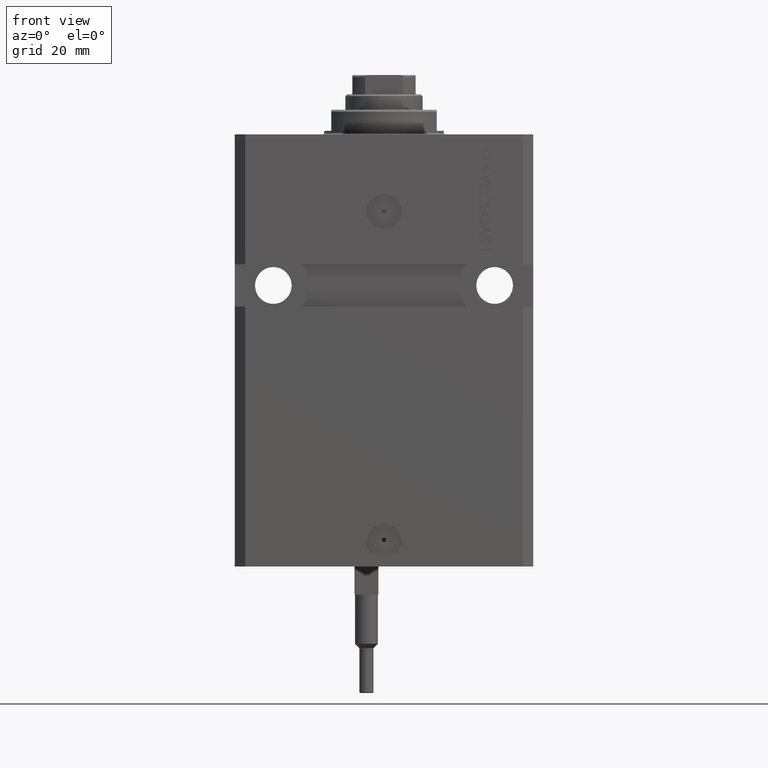
[diagram: clean part render]
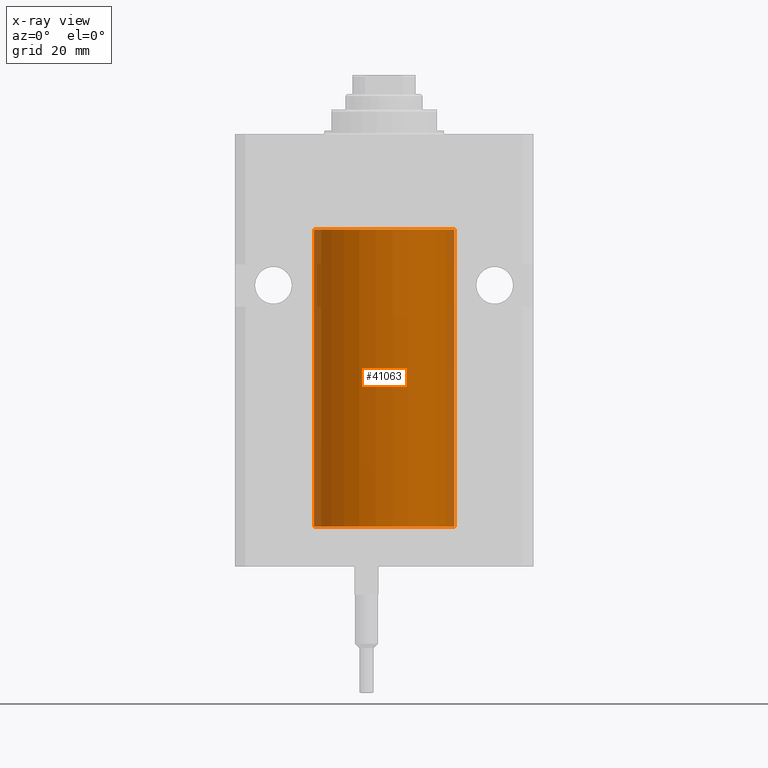
[diagram: x-ray — body ghosted, one internal face saturated and labeled with its STEP entity id]
A machine part, front view, then the same camera in x-ray: the body is ghosted and one INTERNAL B-rep face — a face not visible from any outside direction — is saturated and labeled: STEP entity #41063.
In plain terms, the highlighted cylindrical surface (partial cylindrical patch) has radius 20 mm, axis along (0, 0, 1).
Its self-contained STEP definition (entity closure, byte-faithful):
#20 = EDGE_CURVE ( 'NONE', #22961, #44972, #33809, .T. ) ;
#524 = CARTESIAN_POINT ( 'NONE',  ( 20.00000000000010303, 3.555666352936568165E-13, -108.3749999999966747 ) ) ;
#596 = CARTESIAN_POINT ( 'NONE',  ( 19.99256494106949944, -0.5573539455062719306, -109.3264613235961065 ) ) ;
#655 = B_SPLINE_CURVE_WITH_KNOTS ( 'NONE', 3,
 ( #524, #30359, #42351, #31568, #46024, #23285 ),
 .UNSPECIFIED., .F., .F.,
 ( 4, 2, 4 ),
 ( 0.001954154509844075859, 0.002442840306376440652, 0.002931526102908805446 ),
 .UNSPECIFIED. ) ;
#705 = CARTESIAN_POINT ( 'NONE',  ( 20.00000000000000000, -4.058908006348821872E-15, -109.6250000000000000 ) ) ;
#3141 = EDGE_CURVE ( 'NONE', #9083, #45069, #44557, .T. ) ;
#4304 = CARTESIAN_POINT ( 'NONE',  ( 20.00000000000000000, 0.000000000000000000, -111.6000000000000085 ) ) ;
#5828 = AXIS2_PLACEMENT_3D ( 'NONE', #15339, #27067, #15108 ) ;
#7166 = EDGE_LOOP ( 'NONE', ( #27055, #22283, #21181, #45715, #36597, #8695, #27592 ) ) ;
#7187 = CARTESIAN_POINT ( 'NONE',  ( 19.99023198964933812, -0.6250000000000827116, -109.0000000000000000 ) ) ;
#7413 = DIRECTION ( 'NONE',  ( -0.000000000000000000, -0.000000000000000000, 1.000000000000000000 ) ) ;
#7573 = CARTESIAN_POINT ( 'NONE',  ( 20.00000000000000000, 0.000000000000000000, -27.10000000000000142 ) ) ;
#7734 = CYLINDRICAL_SURFACE ( 'NONE', #21230, 20.00000000000000000 ) ;
#7945 = CARTESIAN_POINT ( 'NONE',  ( 19.99023198964934167, -0.6250000000000828226, -109.1647941998272842 ) ) ;
#8695 = ORIENTED_EDGE ( 'NONE', *, *, #3141, .T. ) ;
#9083 = VERTEX_POINT ( 'NONE', #7187 ) ;
#10110 = CIRCLE ( 'NONE', #42113, 20.00000000000000000 ) ;
#10451 = EDGE_CURVE ( 'NONE', #12658, #39013, #44065, .T. ) ;
#10856 = CARTESIAN_POINT ( 'NONE',  ( 20.00000000000000000, 0.000000000000000000, -111.6000000000000085 ) ) ;
#12658 = VERTEX_POINT ( 'NONE', #43154 ) ;
#13450 = CARTESIAN_POINT ( 'NONE',  ( -20.00000000000000000, 2.449293598294706513E-15, -27.10000000000000142 ) ) ;
#14610 = FACE_OUTER_BOUND ( 'NONE', #7166, .T. ) ;
#14681 = EDGE_CURVE ( 'NONE', #12658, #30205, #10110, .T. ) ;
#15108 = DIRECTION ( 'NONE',  ( 1.000000000000000000, 0.000000000000000000, 0.000000000000000000 ) ) ;
#15299 = CARTESIAN_POINT ( 'NONE',  ( 19.99023198964933812, -0.6250000000000827116, -109.0000000000000000 ) ) ;
#15339 = CARTESIAN_POINT ( 'NONE',  ( 0.000000000000000000, 0.000000000000000000, -27.10000000000000142 ) ) ;
#18161 = CARTESIAN_POINT ( 'NONE',  ( -20.00000000000000000, 2.449293598294706513E-15, -111.6000000000000085 ) ) ;
#19631 = DIRECTION ( 'NONE',  ( 1.000000000000000000, 0.000000000000000000, 0.000000000000000000 ) ) ;
#19799 = CARTESIAN_POINT ( 'NONE',  ( 20.00000000000010303, 3.555666352936568165E-13, -108.3749999999966747 ) ) ;
#19878 = CARTESIAN_POINT ( 'NONE',  ( 0.000000000000000000, 0.000000000000000000, -111.6000000000000085 ) ) ;
#20113 = DIRECTION ( 'NONE',  ( 0.000000000000000000, 0.000000000000000000, 1.000000000000000000 ) ) ;
#21181 = ORIENTED_EDGE ( 'NONE', *, *, #30334, .T. ) ;
#21230 = AXIS2_PLACEMENT_3D ( 'NONE', #44194, #29996, #25636 ) ;
#21668 = VECTOR ( 'NONE', #7413, 1000.000000000000000 ) ;
#22283 = ORIENTED_EDGE ( 'NONE', *, *, #10451, .T. ) ;
#22886 = CARTESIAN_POINT ( 'NONE',  ( 20.00000000000000000, -0.1650670266421430665, -109.6250000000000284 ) ) ;
#22961 = VERTEX_POINT ( 'NONE', #19799 ) ;
#23285 = CARTESIAN_POINT ( 'NONE',  ( 19.99023198964933812, -0.6250000000000827116, -109.0000000000000000 ) ) ;
#23509 = VECTOR ( 'NONE', #34857, 1000.000000000000000 ) ;
#25636 = DIRECTION ( 'NONE',  ( 1.000000000000000000, 0.000000000000000000, 0.000000000000000000 ) ) ;
#27042 = EDGE_CURVE ( 'NONE', #22961, #9083, #655, .T. ) ;
#27055 = ORIENTED_EDGE ( 'NONE', *, *, #14681, .F. ) ;
#27067 = DIRECTION ( 'NONE',  ( 0.000000000000000000, 0.000000000000000000, 1.000000000000000000 ) ) ;
#27592 = ORIENTED_EDGE ( 'NONE', *, *, #40251, .F. ) ;
#29862 = DIRECTION ( 'NONE',  ( -0.000000000000000000, -0.000000000000000000, 1.000000000000000000 ) ) ;
#29996 = DIRECTION ( 'NONE',  ( -0.000000000000000000, -0.000000000000000000, 1.000000000000000000 ) ) ;
#30205 = VERTEX_POINT ( 'NONE', #41337 ) ;
#30334 = EDGE_CURVE ( 'NONE', #39013, #44972, #38656, .T. ) ;
#30359 = CARTESIAN_POINT ( 'NONE',  ( 20.00000000000000000, -0.1632180151482451602, -108.3749999999998295 ) ) ;
#31568 = CARTESIAN_POINT ( 'NONE',  ( 19.99257096259849931, -0.5571491910957669935, -108.6731986224609869 ) ) ;
#33809 = LINE ( 'NONE', #10856, #21668 ) ;
#33866 = CARTESIAN_POINT ( 'NONE',  ( 19.99766246719553209, -0.3267907458473873761, -109.5571608607969267 ) ) ;
#34857 = DIRECTION ( 'NONE',  ( -0.000000000000000000, -0.000000000000000000, 1.000000000000000000 ) ) ;
#36597 = ORIENTED_EDGE ( 'NONE', *, *, #27042, .T. ) ;
#37797 = CARTESIAN_POINT ( 'NONE',  ( 20.00000000000000000, -4.058908006348821872E-15, -109.6250000000000000 ) ) ;
#38297 = LINE ( 'NONE', #4304, #23509 ) ;
#38656 = CIRCLE ( 'NONE', #5828, 20.00000000000000000 ) ;
#39013 = VERTEX_POINT ( 'NONE', #13450 ) ;
#40251 = EDGE_CURVE ( 'NONE', #30205, #45069, #38297, .T. ) ;
#41063 = ADVANCED_FACE ( 'NONE', ( #14610 ), #7734, .F. ) ;
#41337 = CARTESIAN_POINT ( 'NONE',  ( 20.00000000000000000, 0.000000000000000000, -111.6000000000000085 ) ) ;
#42113 = AXIS2_PLACEMENT_3D ( 'NONE', #19878, #20113, #19631 ) ;
#42351 = CARTESIAN_POINT ( 'NONE',  ( 19.99766790699043995, -0.3264769477312362556, -108.4426606383000546 ) ) ;
#43154 = CARTESIAN_POINT ( 'NONE',  ( -20.00000000000000000, 2.449293598294706513E-15, -111.6000000000000085 ) ) ;
#43546 = VECTOR ( 'NONE', #29862, 1000.000000000000000 ) ;
#44065 = LINE ( 'NONE', #18161, #43546 ) ;
#44194 = CARTESIAN_POINT ( 'NONE',  ( 0.000000000000000000, 0.000000000000000000, -111.6000000000000085 ) ) ;
#44557 = B_SPLINE_CURVE_WITH_KNOTS ( 'NONE', 3,
 ( #15299, #7945, #596, #33866, #22886, #37797 ),
 .UNSPECIFIED., .F., .F.,
 ( 4, 2, 4 ),
 ( 0.002931526102908805446, 0.003419696219975630440, 0.003907866337042455000 ),
 .UNSPECIFIED. ) ;
#44972 = VERTEX_POINT ( 'NONE', #7573 ) ;
#45069 = VERTEX_POINT ( 'NONE', #705 ) ;
#45715 = ORIENTED_EDGE ( 'NONE', *, *, #20, .F. ) ;
#46024 = CARTESIAN_POINT ( 'NONE',  ( 19.99023198964933812, -0.6250000000000828226, -108.8350317194948502 ) ) ;